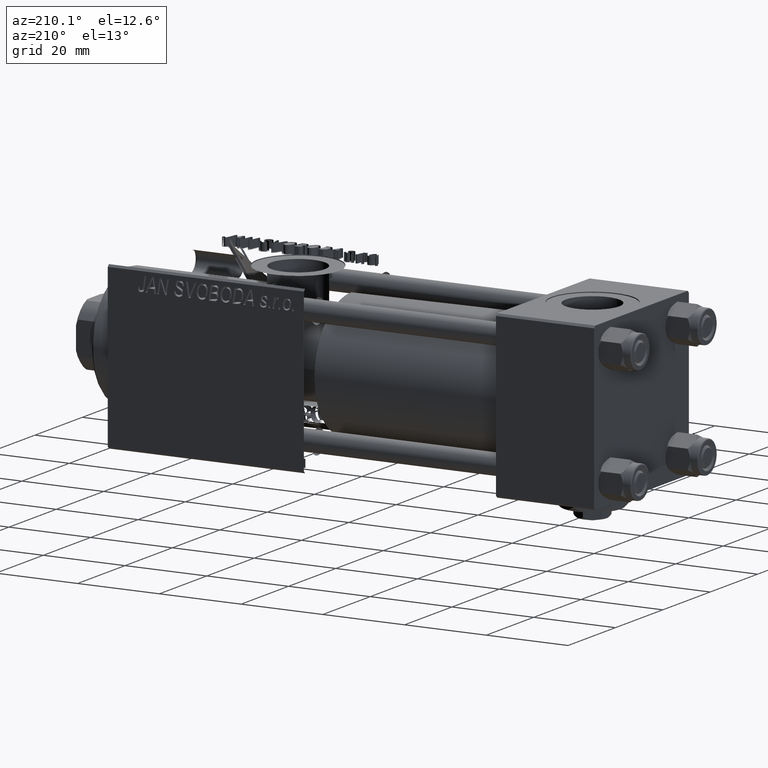
[diagram: clean part render]
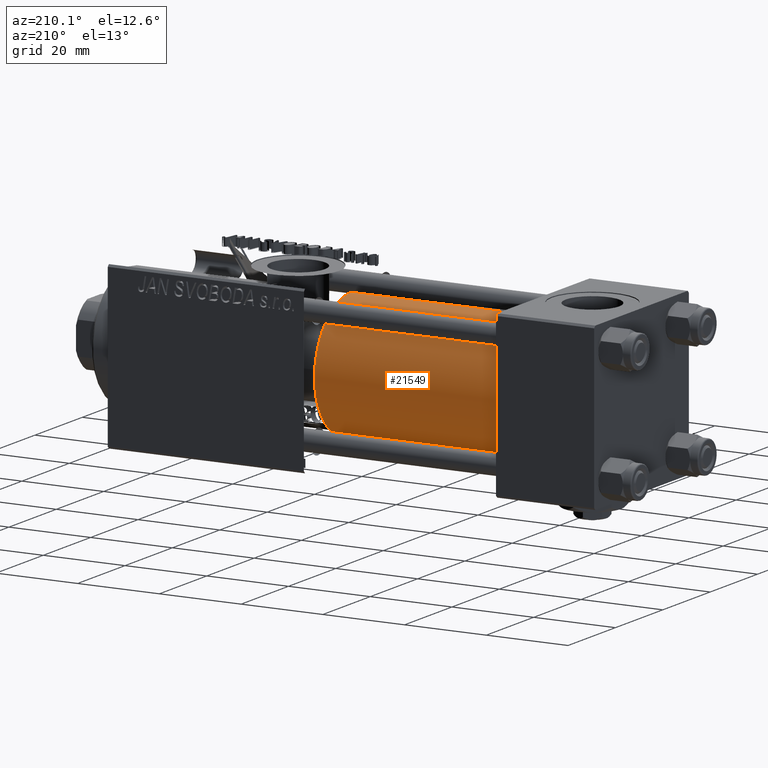
[diagram: same view with one face highlighted and labeled with its STEP entity id]
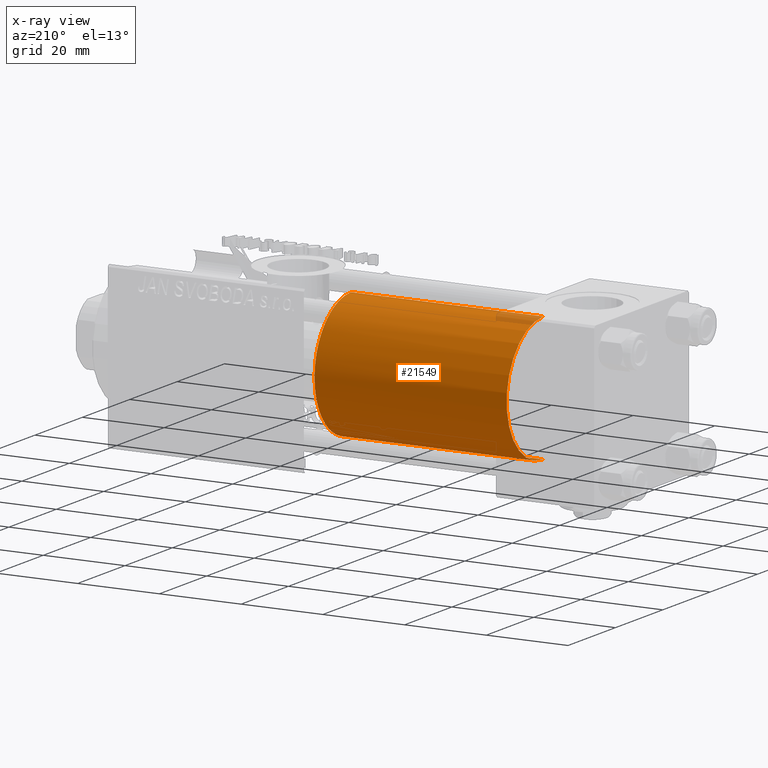
[diagram: x-ray of the same camera — body ghosted, the highlighted face saturated]
A machine part, auxiliary view. The second image highlights one B-rep face of the part: STEP entity #21549.
The next image is the same camera in x-ray: the body ghosted, the highlighted face saturated — about 2% of this face is hidden behind the body in this view.
In plain terms, the highlighted cylindrical surface (partial cylindrical patch) has radius 15.5 mm, axis along (-1, -0, -0).
Its self-contained STEP definition (entity closure, byte-faithful):
#199 = EDGE_CURVE ( 'NONE', #44051, #5539, #45418, .T. ) ;
#825 = DIRECTION ( 'NONE',  ( 0.000000000000000000, 0.000000000000000000, -1.000000000000000000 ) ) ;
#1683 = CARTESIAN_POINT ( 'NONE',  ( 71.00000000000001421, -2.602085213965210642E-15, 0.000000000000000000 ) ) ;
#3279 = AXIS2_PLACEMENT_3D ( 'NONE', #51545, #23516, #27704 ) ;
#3930 = VERTEX_POINT ( 'NONE', #51760 ) ;
#5539 = VERTEX_POINT ( 'NONE', #38777 ) ;
#6611 = CIRCLE ( 'NONE', #3279, 15.50000000000000000 ) ;
#6765 = EDGE_CURVE ( 'NONE', #3930, #14617, #38987, .T. ) ;
#7068 = VECTOR ( 'NONE', #17391, 1000.000000000000000 ) ;
#8439 = VECTOR ( 'NONE', #24029, 1000.000000000000000 ) ;
#9753 = AXIS2_PLACEMENT_3D ( 'NONE', #14996, #40120, #825 ) ;
#12788 = EDGE_LOOP ( 'NONE', ( #46519, #33584, #27908, #41624 ) ) ;
#14617 = VERTEX_POINT ( 'NONE', #25246 ) ;
#14996 = CARTESIAN_POINT ( 'NONE',  ( 71.00000000000001421, -2.602085213965210642E-15, 0.000000000000000000 ) ) ;
#17391 = DIRECTION ( 'NONE',  ( -1.000000000000000000, -0.000000000000000000, -0.000000000000000000 ) ) ;
#17909 = FACE_OUTER_BOUND ( 'NONE', #12788, .T. ) ;
#18172 = DIRECTION ( 'NONE',  ( -1.000000000000000000, -0.000000000000000000, -0.000000000000000000 ) ) ;
#21549 = ADVANCED_FACE ( 'NONE', ( #17909 ), #37557, .T. ) ;
#21865 = EDGE_CURVE ( 'NONE', #44051, #3930, #49915, .T. ) ;
#23516 = DIRECTION ( 'NONE',  ( 1.000000000000000000, 0.000000000000000000, 0.000000000000000000 ) ) ;
#24029 = DIRECTION ( 'NONE',  ( -1.000000000000000000, -0.000000000000000000, -0.000000000000000000 ) ) ;
#25246 = CARTESIAN_POINT ( 'NONE',  ( 24.00000000000000000, -2.602085213965210642E-15, 15.50000000000000000 ) ) ;
#27704 = DIRECTION ( 'NONE',  ( 0.000000000000000000, 0.000000000000000000, 1.000000000000000000 ) ) ;
#27908 = ORIENTED_EDGE ( 'NONE', *, *, #32121, .T. ) ;
#32121 = EDGE_CURVE ( 'NONE', #5539, #14617, #6611, .T. ) ;
#33584 = ORIENTED_EDGE ( 'NONE', *, *, #199, .T. ) ;
#34158 = DIRECTION ( 'NONE',  ( 0.000000000000000000, 0.000000000000000000, 1.000000000000000000 ) ) ;
#37557 = CYLINDRICAL_SURFACE ( 'NONE', #51518, 15.50000000000000000 ) ;
#38777 = CARTESIAN_POINT ( 'NONE',  ( 24.00000000000000000, -7.038826752868131828E-16, -15.50000000000000000 ) ) ;
#38987 = LINE ( 'NONE', #51280, #8439 ) ;
#40120 = DIRECTION ( 'NONE',  ( 1.000000000000000000, 0.000000000000000000, 0.000000000000000000 ) ) ;
#41624 = ORIENTED_EDGE ( 'NONE', *, *, #6765, .F. ) ;
#44051 = VERTEX_POINT ( 'NONE', #48187 ) ;
#45418 = LINE ( 'NONE', #49083, #7068 ) ;
#46519 = ORIENTED_EDGE ( 'NONE', *, *, #21865, .F. ) ;
#48187 = CARTESIAN_POINT ( 'NONE',  ( 71.00000000000001421, -7.038826752868131828E-16, -15.50000000000000000 ) ) ;
#49083 = CARTESIAN_POINT ( 'NONE',  ( 71.00000000000001421, -7.038826752868131828E-16, -15.50000000000000000 ) ) ;
#49915 = CIRCLE ( 'NONE', #9753, 15.50000000000000000 ) ;
#51280 = CARTESIAN_POINT ( 'NONE',  ( 71.00000000000001421, -2.602085213965210642E-15, 15.50000000000000000 ) ) ;
#51518 = AXIS2_PLACEMENT_3D ( 'NONE', #1683, #18172, #34158 ) ;
#51545 = CARTESIAN_POINT ( 'NONE',  ( 24.00000000000000000, -2.602085213965210642E-15, 0.000000000000000000 ) ) ;
#51760 = CARTESIAN_POINT ( 'NONE',  ( 71.00000000000001421, -2.602085213965210642E-15, 15.50000000000000000 ) ) ;